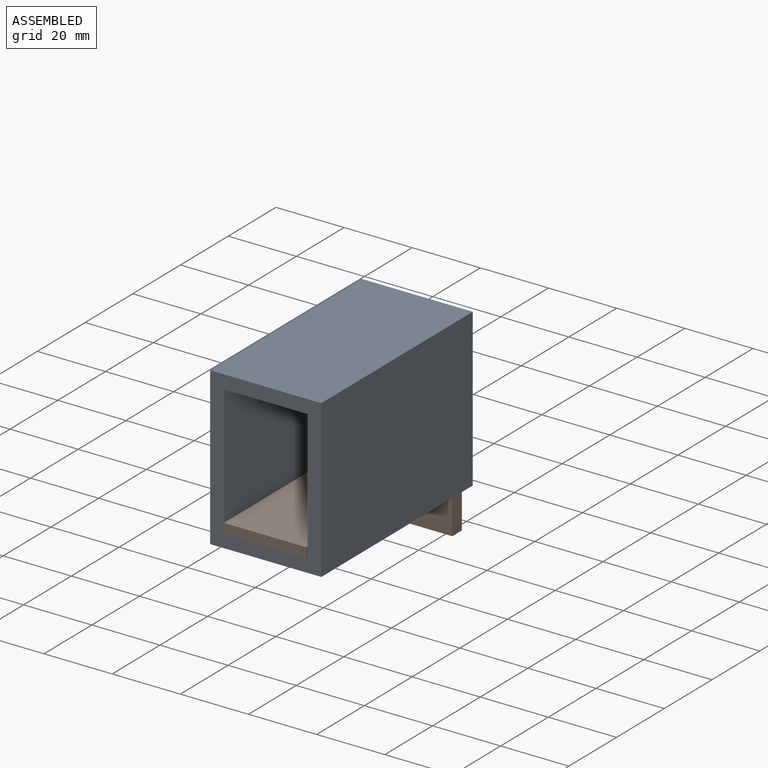
[diagram: assembled view]
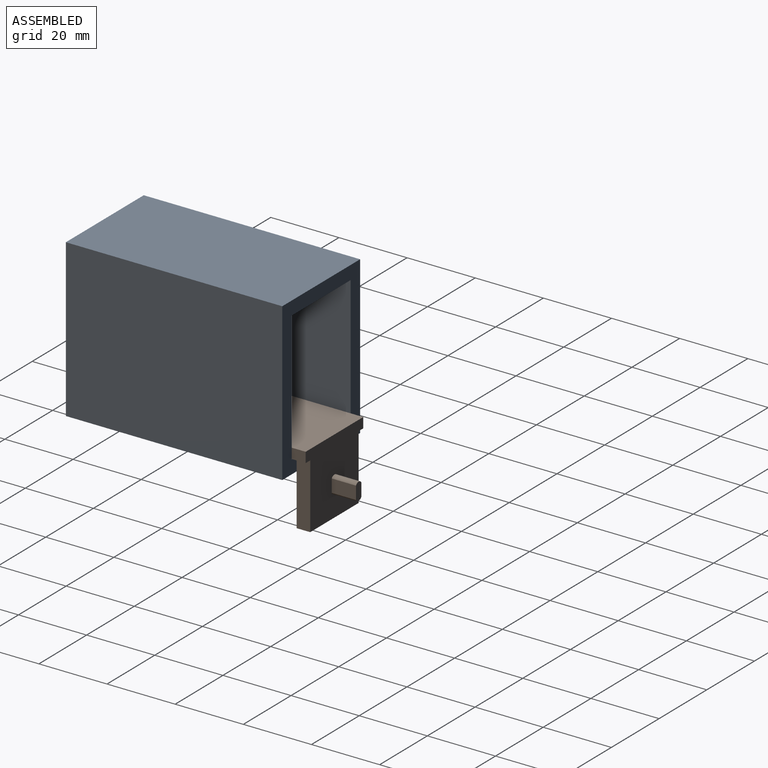
[diagram: assembled view, second angle]
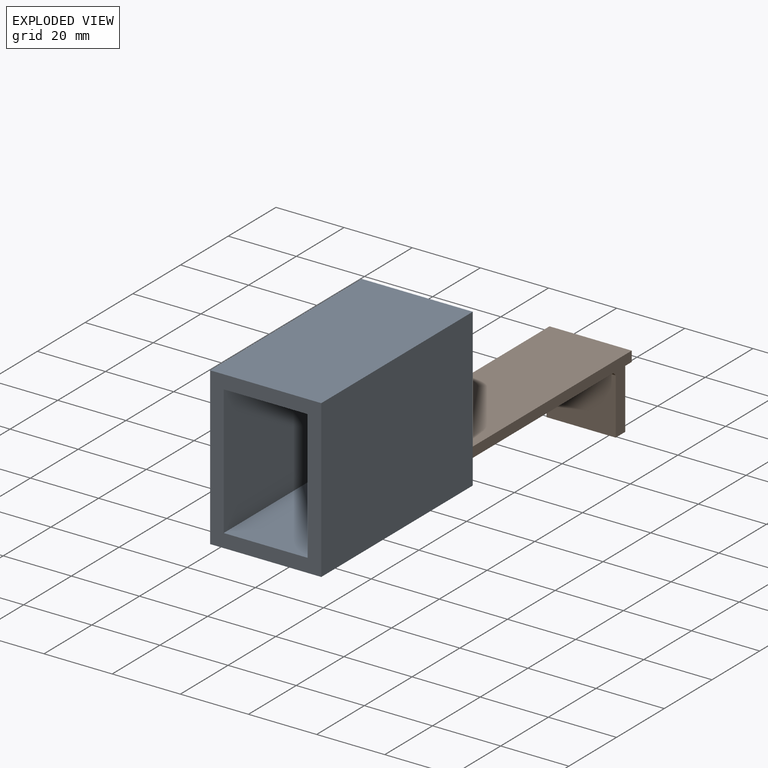
[diagram: exploded view]
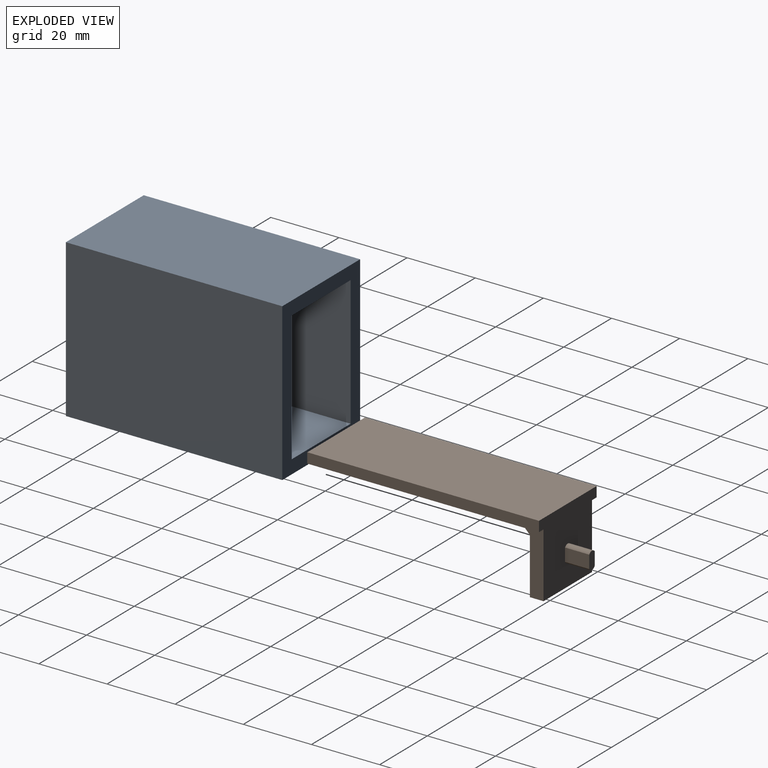
[diagram: exploded view, second angle]
ASSEMBLY  parts=2 mates=2
PART A: 10 faces, bbox 32.6x63.5x46.1 mm
  f0: plane 63.5x32.64mm, normal (0,0,-1), area 2072.5mm2, adj f1,f7,f8,f9
  f1: plane 63.5x46.1mm, normal (1,0,0), area 2927.3mm2, adj f0,f2,f8,f9
  f2: plane 63.5x32.64mm, normal (0,0,1), area 2072.5mm2, adj f1,f7,f8,f9
  f3: plane 63.5x24.64mm, normal (0,0,-1), area 1564.5mm2, adj f4,f6,f8,f9
  f4: plane 63.5x38.1mm, normal (-1,0,0), area 2419.3mm2, adj f3,f5,f8,f9
  f5: plane 63.5x24.64mm, normal (0,0,1), area 1564.5mm2, adj f4,f6,f8,f9
  f6: plane 63.5x38.1mm, normal (1,0,0), area 2419.3mm2, adj f3,f5,f8,f9
  f7: plane 63.5x46.1mm, normal (-1,0,0), area 2927.3mm2, adj f0,f2,f8,f9
  f8: plane 46.1x32.64mm, normal (0,-1,0), area 565.9mm2, adj f0,f1,f2,f3,f4,f5,f6,f7
  f9: plane 46.1x32.64mm, normal (0,1,0), area 565.9mm2, adj f0,f1,f2,f3,f4,f5,f6,f7
PART B: 16 faces, bbox 24.1x75.1x22.1 mm
  f0: plane 24.13x22.05mm, normal (0,1,0), area 448.7mm2, adj f1,f3,f4,f5,f6,f8,f9,f10
  f1: plane 68x3mm, normal (-1,0,0), area 204mm2, adj f0,f2,f4,f5
  f2: plane 24.13x3mm, normal (0,-1,0), area 72.4mm2, adj f1,f3,f4,f5
  f3: plane 68x3mm, normal (1,0,0), area 204mm2, adj f0,f2,f4,f5
  f4: plane 68x24.13mm, normal (0,0,1), area 1640.8mm2, adj f0,f1,f2,f3
  f5: plane 68x24.13mm, normal (0,0,-1), area 1507.9mm2, adj f0,f1,f2,f3,f6,f8,f15
  f6: plane 19.05x6.54mm, normal (1,0,0), area 79.4mm2, adj f0,f5,f7,f9,f15
  f7: plane 20.32x16.51mm, normal (0,-1,0), area 335.5mm2, adj f6,f8,f9,f15
  f8: plane 19.05x6.54mm, normal (-1,0,0), area 79.4mm2, adj f0,f5,f7,f9,f15
  f9: plane 20.32x4mm, normal (0,0,-1), area 81.3mm2, adj f0,f6,f7,f8
  f10: plane 7.11x3.81mm, normal (1,0,0), area 27.1mm2, adj f0,f11,f13,f14
  f11: cylinder r=1.35mm len=7.11mm, axis (0,-1,0), area 19.4mm2, adj f0,f10,f12,f14
  f12: plane 7.11x3.81mm, normal (-1,0,0), area 27.1mm2, adj f0,f11,f13,f14
  f13: cylinder r=1.35mm len=7.11mm, axis (0,-1,0), area 19.4mm2, adj f0,f10,f12,f14
  f14: plane 5.08x2.29mm, normal (0,1,0), area 10.8mm2, adj f10,f11,f12,f13
  f15: plane 20.32x2.54mm, normal (0,-0.71,-0.71), area 73mm2, adj f5,f6,f7,f8
PLACE A t=(-26.37,8.38,-12.22)mm
PLACE B t=(-14.15,12.38,-31.27)mm
MATE planar B.f7 <-> A.f9  axis (0,-1,0) through (-26.22,8.38,-50.32)mm
MATE planar B.f5 <-> A.f5  axis (0,0,-1) through (-26.22,-24.33,-31.27)mm
